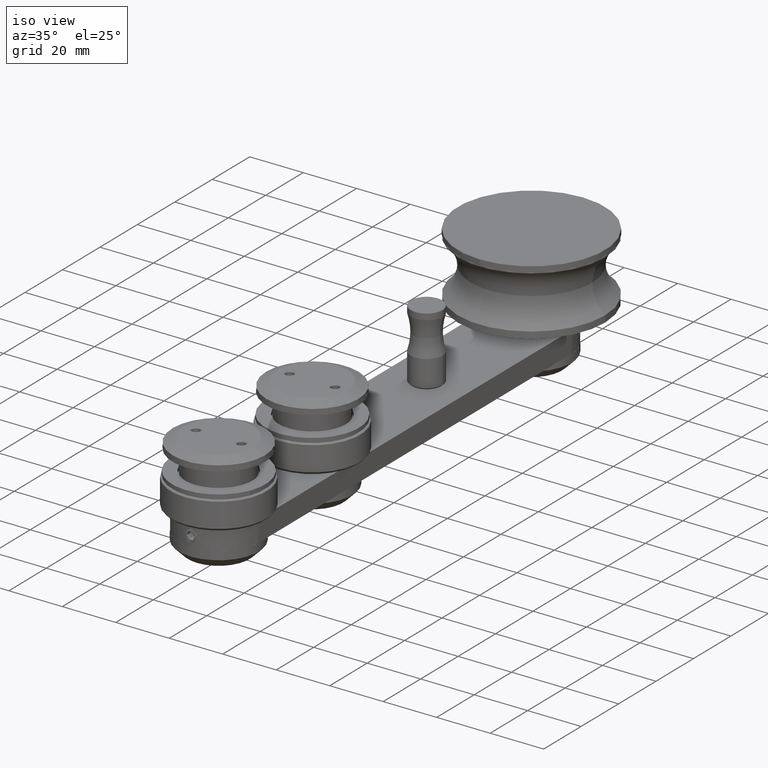
[diagram: clean part render]
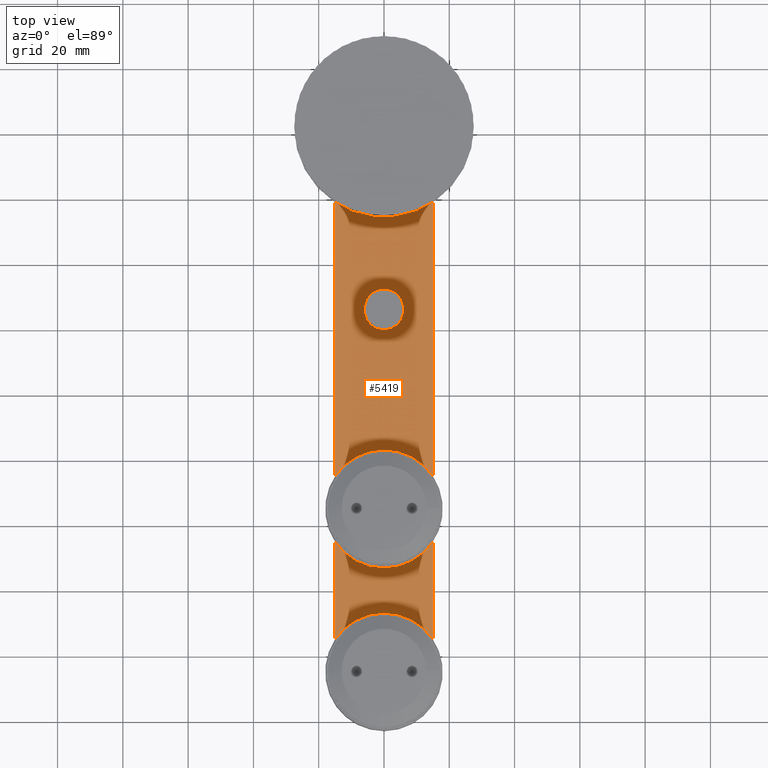
[diagram: tour spotlight — one face highlighted and labeled with its STEP entity id]
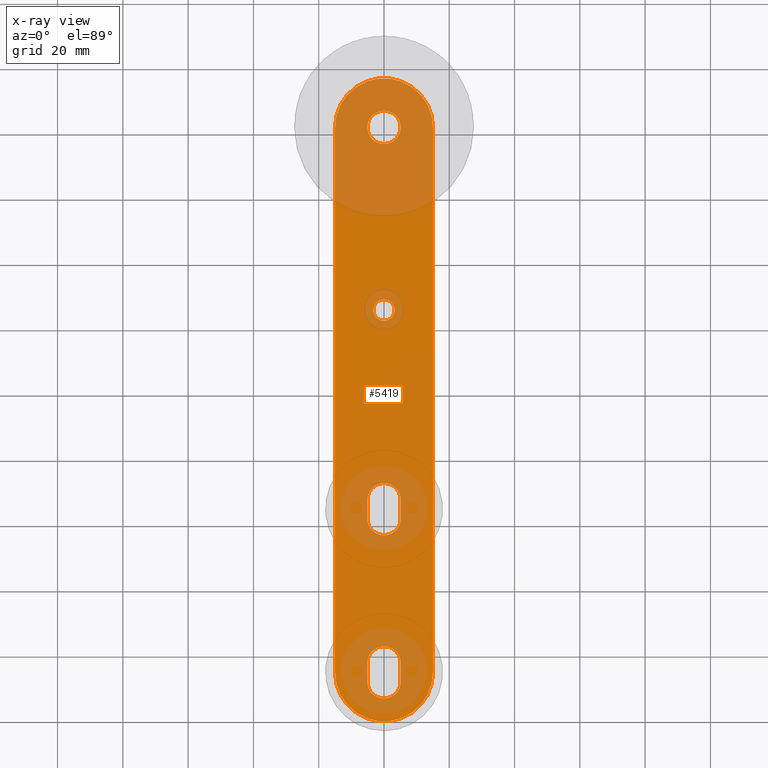
[diagram: x-ray of the same camera — body ghosted, this tour face saturated]
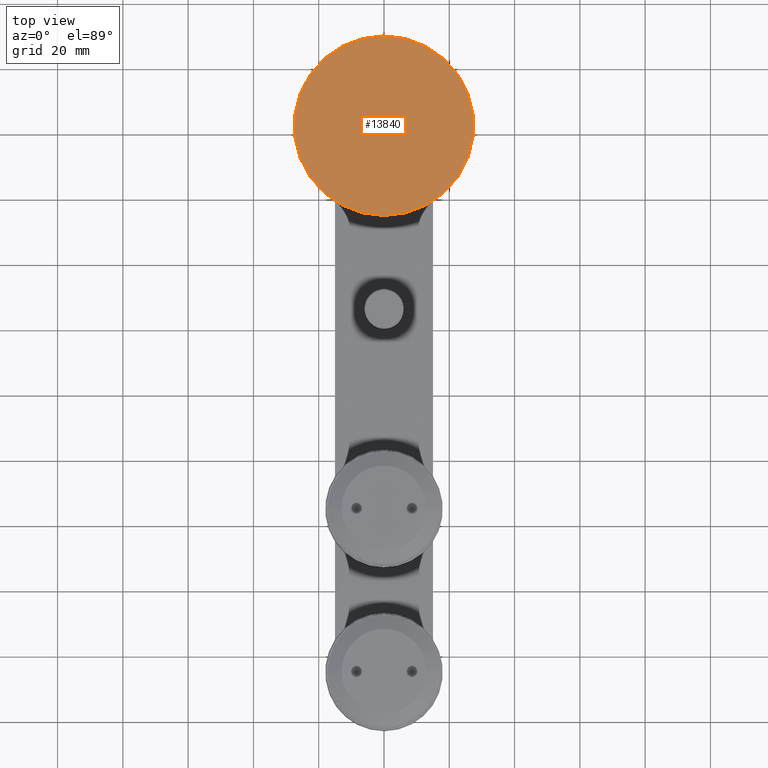
[diagram: tour spotlight — one face highlighted and labeled with its STEP entity id]
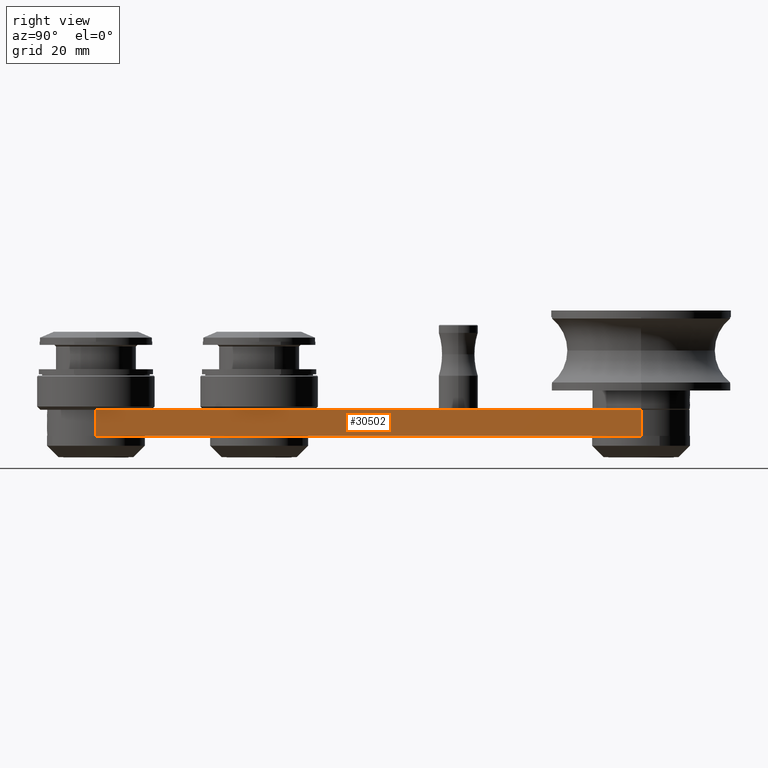
[diagram: tour spotlight — one face highlighted and labeled with its STEP entity id]
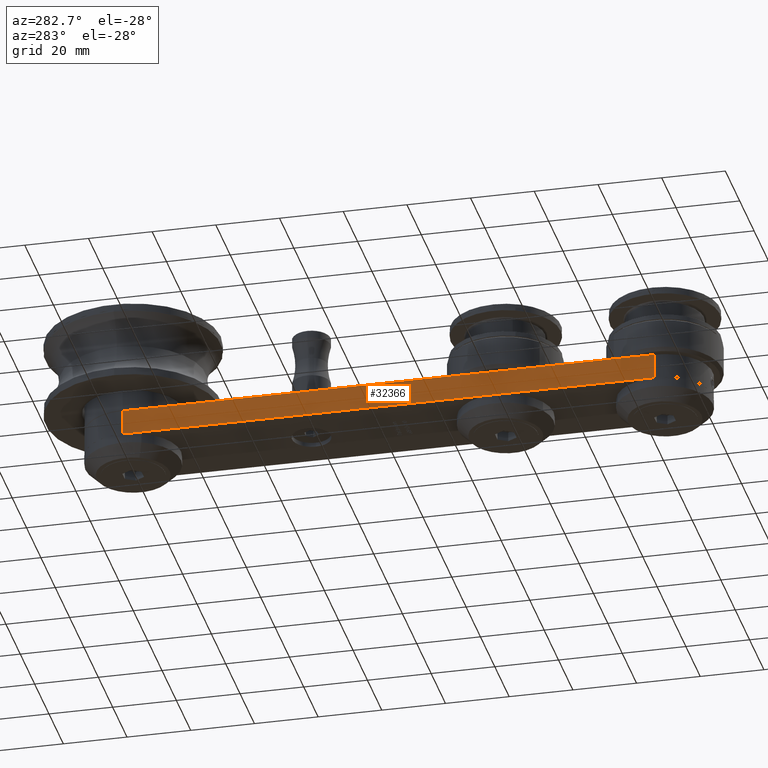
[diagram: tour spotlight — one face highlighted and labeled with its STEP entity id]
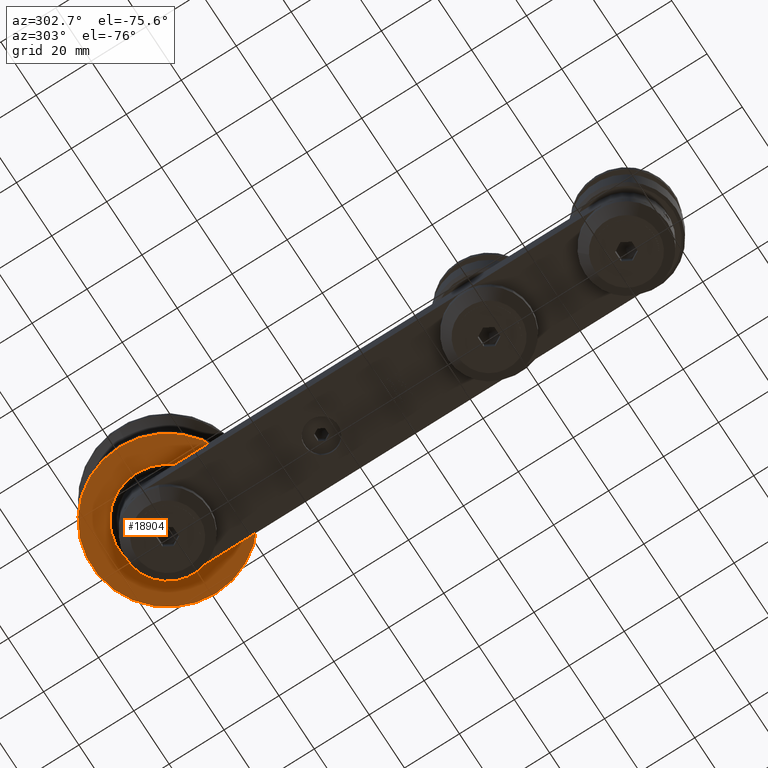
[diagram: tour spotlight — one face highlighted and labeled with its STEP entity id]
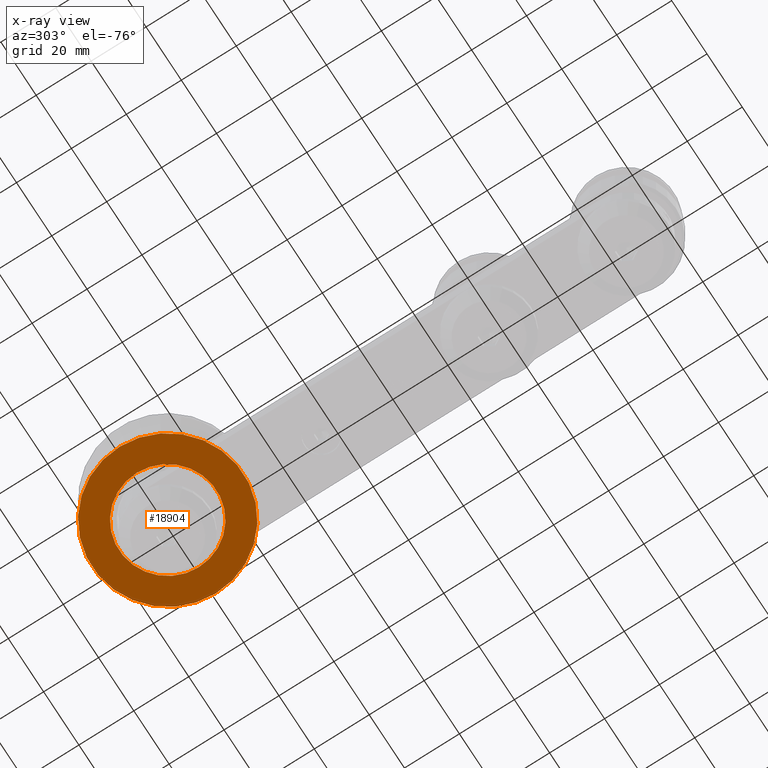
[diagram: x-ray of the same camera — body ghosted, this tour face saturated]
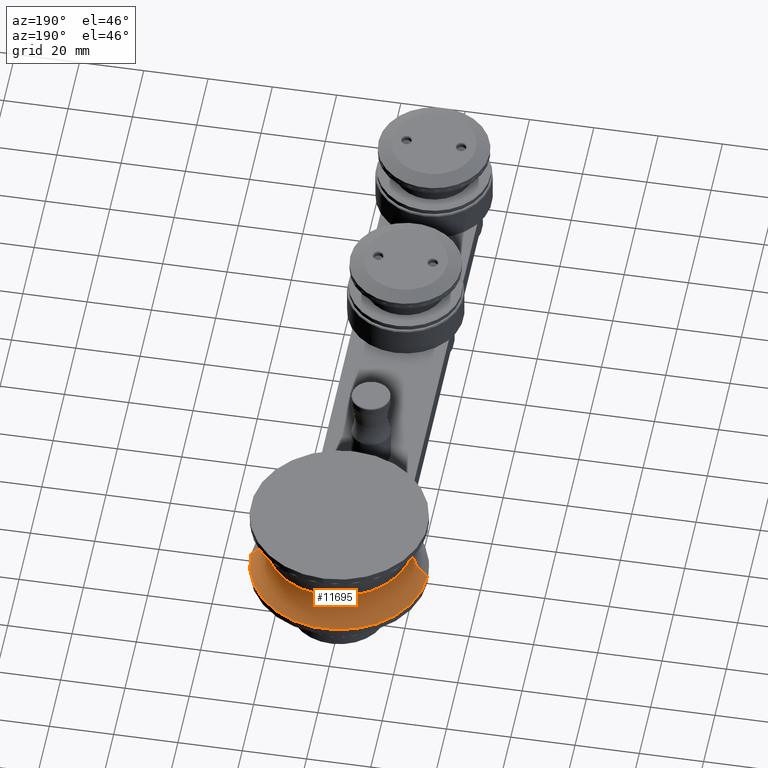
[diagram: tour spotlight — one face highlighted and labeled with its STEP entity id]
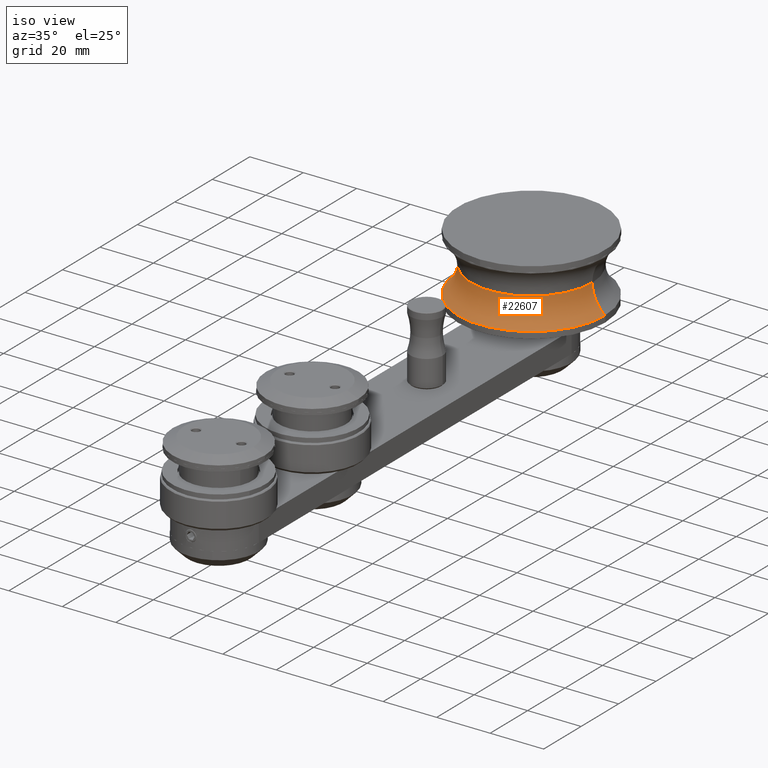
[diagram: tour spotlight — one face highlighted and labeled with its STEP entity id]
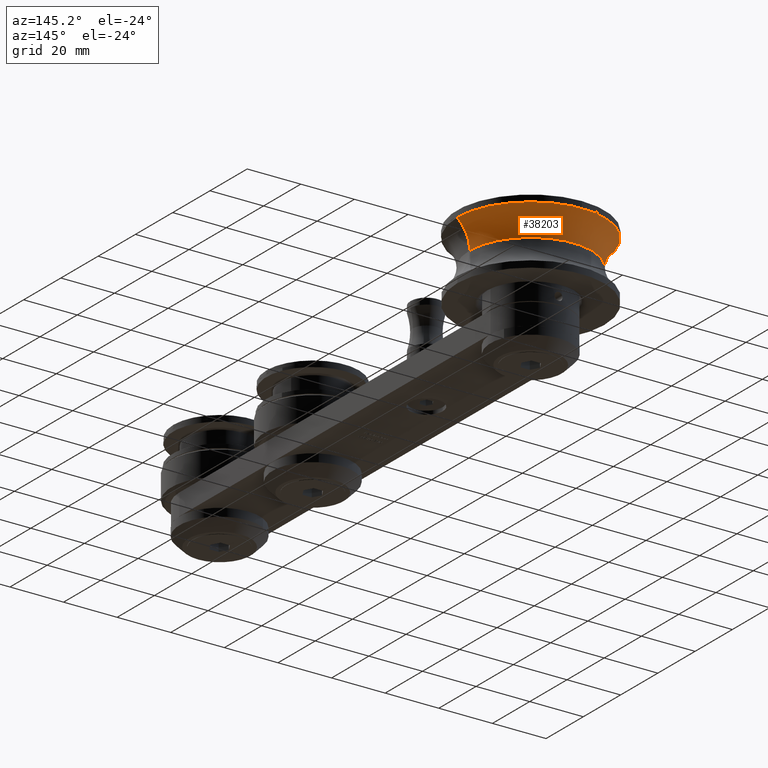
[diagram: tour spotlight — one face highlighted and labeled with its STEP entity id]
A machine part: a face-by-face anatomy tour. The part has 987 B-rep faces; the first image is the clean iso view, then the 8 largest visible faces are spotlighted one at a time (largest first), each with its STEP entity span.

Face 1 — top view, entity #5419. An x-ray twin of the same camera follows (body ghosted, this face saturated) — the face is partly hidden behind the body. In plain terms, the highlighted planar face has unit normal (0, 0, 1).
Definition (entity closure, byte-faithful):
#142 = EDGE_LOOP ( 'NONE', ( #12734, #22646 ) ) ;
#166 = VECTOR ( 'NONE', #3128, 1000.000000000000000 ) ;
#484 = DIRECTION ( 'NONE',  ( 1.000000000000000000, 0.0000000000000000000, 0.0000000000000000000 ) ) ;
#1187 = VERTEX_POINT ( 'NONE', #19536 ) ;
#1382 = CARTESIAN_POINT ( 'NONE',  ( 15.00000000000004100, 15.00000000000001400, 4.000000000000000000 ) ) ;
#1811 = LINE ( 'NONE', #10033, #166 ) ;
#1943 = VECTOR ( 'NONE', #8839, 1000.000000000000000 ) ;
#2210 = VERTEX_POINT ( 'NONE', #34597 ) ;
#2949 = LINE ( 'NONE', #43219, #44552 ) ;
#3128 = DIRECTION ( 'NONE',  ( -1.495451272393799300E-016, 1.000000000000000000, -0.0000000000000000000 ) ) ;
#3132 = EDGE_CURVE ( 'NONE', #32238, #12658, #11281, .T. ) ;
#3175 = PLANE ( 'NONE',  #35978 ) ;
#3995 = CARTESIAN_POINT ( 'NONE',  ( 2.076388647954336800E-014, 67.90000000000000600, 4.000000000000000000 ) ) ;
#4226 = DIRECTION ( 'NONE',  ( 1.000000000000000000, 0.0000000000000000000, 0.0000000000000000000 ) ) ;
#4276 = VERTEX_POINT ( 'NONE', #40925 ) ;
#4315 = VERTEX_POINT ( 'NONE', #38609 ) ;
#4747 = ORIENTED_EDGE ( 'NONE', *, *, #6115, .F. ) ;
#4755 = LINE ( 'NONE', #5962, #8025 ) ;
#5028 = CARTESIAN_POINT ( 'NONE',  ( 5.100000000000019200, 17.89999999999999900, 4.000000000000000000 ) ) ;
#5356 = VERTEX_POINT ( 'NONE', #5028 ) ;
#5419 = ADVANCED_FACE ( 'NONE', ( #21505, #17188, #20996, #16094, #29168 ), #3175, .T. ) ;
#5472 = CARTESIAN_POINT ( 'NONE',  ( -14.99999999999997500, 181.9999999999999700, 4.000000000000000000 ) ) ;
#5617 = DIRECTION ( 'NONE',  ( 0.0000000000000000000, 0.0000000000000000000, 1.000000000000000000 ) ) ;
#5897 = DIRECTION ( 'NONE',  ( 2.990902544787597600E-016, -1.000000000000000000, 0.0000000000000000000 ) ) ;
#5962 = CARTESIAN_POINT ( 'NONE',  ( 5.100000000000019200, 17.89999999999999900, 4.000000000000000000 ) ) ;
#6091 = AXIS2_PLACEMENT_3D ( 'NONE', #35457, #15759, #36545 ) ;
#6115 = EDGE_CURVE ( 'NONE', #18741, #25147, #1811, .T. ) ;
#6340 = CARTESIAN_POINT ( 'NONE',  ( -3.081487911019577400E-030, 182.0000000000000000, 4.000000000000000000 ) ) ;
#6707 = DIRECTION ( 'NONE',  ( 0.0000000000000000000, 0.0000000000000000000, 1.000000000000000000 ) ) ;
#6730 = VERTEX_POINT ( 'NONE', #24529 ) ;
#6809 = CIRCLE ( 'NONE', #33723, 15.00000000000001800 ) ;
#7348 = CARTESIAN_POINT ( 'NONE',  ( -2.482681260612889300E-014, 181.9999999999999700, 4.000000000000000000 ) ) ;
#7663 = LINE ( 'NONE', #27874, #24043 ) ;
#7699 = CARTESIAN_POINT ( 'NONE',  ( -15.00000000000001800, 15.00000000000000900, 4.000000000000000000 ) ) ;
#8025 = VECTOR ( 'NONE', #20022, 1000.000000000000000 ) ;
#8839 = DIRECTION ( 'NONE',  ( -1.246507886929442700E-016, -1.000000000000000000, 0.0000000000000000000 ) ) ;
#9111 = EDGE_LOOP ( 'NONE', ( #26226, #23682, #4747, #40985 ) ) ;
#9456 = VERTEX_POINT ( 'NONE', #30675 ) ;
#9460 = AXIS2_PLACEMENT_3D ( 'NONE', #33741, #5617, #37285 ) ;
#9838 = CARTESIAN_POINT ( 'NONE',  ( 5.100000000000013900, 62.10000000000000100, 4.000000000000000000 ) ) ;
#10033 = CARTESIAN_POINT ( 'NONE',  ( 5.100000000000013000, 67.90000000000000600, 4.000000000000000000 ) ) ;
#10525 = EDGE_CURVE ( 'NONE', #1187, #32238, #18336, .T. ) ;
#11075 = ORIENTED_EDGE ( 'NONE', *, *, #34197, .F. ) ;
#11160 = DIRECTION ( 'NONE',  ( 1.000000000000000000, 0.0000000000000000000, 0.0000000000000000000 ) ) ;
#11281 = LINE ( 'NONE', #5472, #1943 ) ;
#11665 = EDGE_CURVE ( 'NONE', #4276, #6730, #2949, .T. ) ;
#11922 = CARTESIAN_POINT ( 'NONE',  ( -14.99999999999997500, 181.9999999999999700, 4.000000000000000000 ) ) ;
#12115 = CARTESIAN_POINT ( 'NONE',  ( 1.468351512177675600E-014, 62.10000000000000100, 4.000000000000000000 ) ) ;
#12179 = CARTESIAN_POINT ( 'NONE',  ( 0.0000000000000000000, 15.00000000000000700, 4.000000000000000000 ) ) ;
#12333 = ORIENTED_EDGE ( 'NONE', *, *, #28442, .T. ) ;
#12466 = EDGE_LOOP ( 'NONE', ( #14642, #28198, #35573, #12333 ) ) ;
#12658 = VERTEX_POINT ( 'NONE', #7699 ) ;
#12734 = ORIENTED_EDGE ( 'NONE', *, *, #24199, .F. ) ;
#13223 = DIRECTION ( 'NONE',  ( 0.0000000000000000000, 0.0000000000000000000, 1.000000000000000000 ) ) ;
#13476 = CIRCLE ( 'NONE', #31040, 5.099999999999992500 ) ;
#13919 = CARTESIAN_POINT ( 'NONE',  ( 5.100000000000013000, 67.90000000000000600, 4.000000000000000000 ) ) ;
#13921 = EDGE_CURVE ( 'NONE', #6730, #36324, #27453, .T. ) ;
#14206 = ORIENTED_EDGE ( 'NONE', *, *, #14742, .F. ) ;
#14557 = EDGE_CURVE ( 'NONE', #40818, #4315, #35131, .T. ) ;
#14642 = ORIENTED_EDGE ( 'NONE', *, *, #10525, .T. ) ;
#14742 = EDGE_CURVE ( 'NONE', #5356, #4276, #26878, .T. ) ;
#14954 = AXIS2_PLACEMENT_3D ( 'NONE', #7348, #24303, #27655 ) ;
#15190 = EDGE_LOOP ( 'NONE', ( #42342, #11075 ) ) ;
#15759 = DIRECTION ( 'NONE',  ( 0.0000000000000000000, 0.0000000000000000000, 1.000000000000000000 ) ) ;
#16094 = FACE_OUTER_BOUND ( 'NONE', #12466, .T. ) ;
#16407 = CIRCLE ( 'NONE', #29095, 5.099999999999992500 ) ;
#16750 = CIRCLE ( 'NONE', #28647, 3.249999999999997800 ) ;
#17096 = DIRECTION ( 'NONE',  ( 1.000000000000000000, 0.0000000000000000000, -0.0000000000000000000 ) ) ;
#17188 = FACE_BOUND ( 'NONE', #19520, .T. ) ;
#17331 = CIRCLE ( 'NONE', #27476, 5.099999999999996100 ) ;
#18045 = CARTESIAN_POINT ( 'NONE',  ( 5.099999999999996100, 182.0000000000000000, 4.000000000000000000 ) ) ;
#18336 = CIRCLE ( 'NONE', #14954, 15.00000000000000000 ) ;
#18471 = ORIENTED_EDGE ( 'NONE', *, *, #11665, .F. ) ;
#18474 = DIRECTION ( 'NONE',  ( 0.0000000000000000000, 0.0000000000000000000, 1.000000000000000000 ) ) ;
#18612 = CARTESIAN_POINT ( 'NONE',  ( -3.081487911019577400E-030, 182.0000000000000000, 4.000000000000000000 ) ) ;
#18741 = VERTEX_POINT ( 'NONE', #9838 ) ;
#19291 = EDGE_CURVE ( 'NONE', #4315, #18741, #16407, .T. ) ;
#19520 = EDGE_LOOP ( 'NONE', ( #18471, #14206, #44472, #21183 ) ) ;
#19536 = CARTESIAN_POINT ( 'NONE',  ( 15.00000000000002100, 181.9999999999999700, 4.000000000000000000 ) ) ;
#20022 = DIRECTION ( 'NONE',  ( -0.0000000000000000000, 1.000000000000000000, -0.0000000000000000000 ) ) ;
#20108 = DIRECTION ( 'NONE',  ( 0.0000000000000000000, 0.0000000000000000000, 1.000000000000000000 ) ) ;
#20996 = FACE_BOUND ( 'NONE', #9111, .T. ) ;
#21183 = ORIENTED_EDGE ( 'NONE', *, *, #13921, .F. ) ;
#21505 = FACE_BOUND ( 'NONE', #142, .T. ) ;
#21811 = CARTESIAN_POINT ( 'NONE',  ( 2.009645397400806700E-014, 17.89999999999999900, 4.000000000000000000 ) ) ;
#22646 = ORIENTED_EDGE ( 'NONE', *, *, #31000, .F. ) ;
#23245 = EDGE_CURVE ( 'NONE', #36324, #5356, #4755, .T. ) ;
#23478 = AXIS2_PLACEMENT_3D ( 'NONE', #18612, #18474, #4226 ) ;
#23620 = VECTOR ( 'NONE', #40894, 1000.000000000000000 ) ;
#23682 = ORIENTED_EDGE ( 'NONE', *, *, #35213, .F. ) ;
#24043 = VECTOR ( 'NONE', #37710, 1000.000000000000000 ) ;
#24199 = EDGE_CURVE ( 'NONE', #2210, #41909, #16750, .T. ) ;
#24303 = DIRECTION ( 'NONE',  ( 0.0000000000000000000, 0.0000000000000000000, 1.000000000000000000 ) ) ;
#24529 = CARTESIAN_POINT ( 'NONE',  ( -5.099999999999977400, 12.10000000000000000, 4.000000000000000000 ) ) ;
#25091 = CIRCLE ( 'NONE', #6091, 3.249999999999997800 ) ;
#25147 = VERTEX_POINT ( 'NONE', #13919 ) ;
#26138 = DIRECTION ( 'NONE',  ( 0.0000000000000000000, 0.0000000000000000000, 1.000000000000000000 ) ) ;
#26226 = ORIENTED_EDGE ( 'NONE', *, *, #14557, .F. ) ;
#26773 = CARTESIAN_POINT ( 'NONE',  ( -5.099999999999972100, 67.90000000000000600, 4.000000000000000000 ) ) ;
#26878 = CIRCLE ( 'NONE', #32870, 5.099999999999999600 ) ;
#27109 = DIRECTION ( 'NONE',  ( 1.000000000000000000, 0.0000000000000000000, 0.0000000000000000000 ) ) ;
#27453 = CIRCLE ( 'NONE', #9460, 5.099999999999998800 ) ;
#27476 = AXIS2_PLACEMENT_3D ( 'NONE', #6340, #13223, #31068 ) ;
#27655 = DIRECTION ( 'NONE',  ( 1.000000000000000000, 0.0000000000000000000, 0.0000000000000000000 ) ) ;
#27874 = CARTESIAN_POINT ( 'NONE',  ( 15.00000000000002100, 181.9999999999999700, 4.000000000000000000 ) ) ;
#28198 = ORIENTED_EDGE ( 'NONE', *, *, #3132, .T. ) ;
#28442 = EDGE_CURVE ( 'NONE', #43355, #1187, #7663, .T. ) ;
#28647 = AXIS2_PLACEMENT_3D ( 'NONE', #42636, #31930, #11160 ) ;
#29095 = AXIS2_PLACEMENT_3D ( 'NONE', #12115, #26138, #36574 ) ;
#29130 = DIRECTION ( 'NONE',  ( 0.0000000000000000000, 0.0000000000000000000, 1.000000000000000000 ) ) ;
#29168 = FACE_BOUND ( 'NONE', #15190, .T. ) ;
#29501 = CARTESIAN_POINT ( 'NONE',  ( -5.099999999999972100, 67.90000000000000600, 4.000000000000000000 ) ) ;
#30098 = CARTESIAN_POINT ( 'NONE',  ( 3.249999999999997800, 126.0000000000000000, 4.000000000000000000 ) ) ;
#30675 = CARTESIAN_POINT ( 'NONE',  ( -5.099999999999996100, 182.0000000000000000, 4.000000000000000000 ) ) ;
#31000 = EDGE_CURVE ( 'NONE', #41909, #2210, #25091, .T. ) ;
#31040 = AXIS2_PLACEMENT_3D ( 'NONE', #3995, #38869, #484 ) ;
#31068 = DIRECTION ( 'NONE',  ( 1.000000000000000000, 0.0000000000000000000, 0.0000000000000000000 ) ) ;
#31930 = DIRECTION ( 'NONE',  ( 0.0000000000000000000, 0.0000000000000000000, 1.000000000000000000 ) ) ;
#32167 = VERTEX_POINT ( 'NONE', #18045 ) ;
#32238 = VERTEX_POINT ( 'NONE', #11922 ) ;
#32870 = AXIS2_PLACEMENT_3D ( 'NONE', #21811, #29130, #42793 ) ;
#33723 = AXIS2_PLACEMENT_3D ( 'NONE', #12179, #20108, #27109 ) ;
#33741 = CARTESIAN_POINT ( 'NONE',  ( 2.080674911751352900E-014, 12.10000000000000000, 4.000000000000000000 ) ) ;
#34197 = EDGE_CURVE ( 'NONE', #32167, #9456, #17331, .T. ) ;
#34597 = CARTESIAN_POINT ( 'NONE',  ( -3.249999999999997800, 126.0000000000000000, 4.000000000000000000 ) ) ;
#35131 = LINE ( 'NONE', #26773, #23620 ) ;
#35213 = EDGE_CURVE ( 'NONE', #25147, #40818, #13476, .T. ) ;
#35457 = CARTESIAN_POINT ( 'NONE',  ( 2.014925206034263600E-030, 126.0000000000000000, 4.000000000000000000 ) ) ;
#35573 = ORIENTED_EDGE ( 'NONE', *, *, #37439, .T. ) ;
#35978 = AXIS2_PLACEMENT_3D ( 'NONE', #44768, #6707, #17096 ) ;
#36324 = VERTEX_POINT ( 'NONE', #43172 ) ;
#36545 = DIRECTION ( 'NONE',  ( 1.000000000000000000, 0.0000000000000000000, 0.0000000000000000000 ) ) ;
#36574 = DIRECTION ( 'NONE',  ( 1.000000000000000000, 0.0000000000000000000, 0.0000000000000000000 ) ) ;
#37285 = DIRECTION ( 'NONE',  ( 1.000000000000000000, 0.0000000000000000000, 0.0000000000000000000 ) ) ;
#37439 = EDGE_CURVE ( 'NONE', #12658, #43355, #6809, .T. ) ;
#37710 = DIRECTION ( 'NONE',  ( -1.142632229685322400E-016, 1.000000000000000000, -0.0000000000000000000 ) ) ;
#38609 = CARTESIAN_POINT ( 'NONE',  ( -5.099999999999977400, 62.10000000000000100, 4.000000000000000000 ) ) ;
#38869 = DIRECTION ( 'NONE',  ( 0.0000000000000000000, 0.0000000000000000000, 1.000000000000000000 ) ) ;
#39415 = EDGE_CURVE ( 'NONE', #9456, #32167, #43942, .T. ) ;
#40818 = VERTEX_POINT ( 'NONE', #29501 ) ;
#40894 = DIRECTION ( 'NONE',  ( 1.495451272393799300E-016, -1.000000000000000000, 0.0000000000000000000 ) ) ;
#40925 = CARTESIAN_POINT ( 'NONE',  ( -5.099999999999979200, 17.89999999999999900, 4.000000000000000000 ) ) ;
#40985 = ORIENTED_EDGE ( 'NONE', *, *, #19291, .F. ) ;
#41909 = VERTEX_POINT ( 'NONE', #30098 ) ;
#42342 = ORIENTED_EDGE ( 'NONE', *, *, #39415, .F. ) ;
#42636 = CARTESIAN_POINT ( 'NONE',  ( 2.014925206034263600E-030, 126.0000000000000000, 4.000000000000000000 ) ) ;
#42793 = DIRECTION ( 'NONE',  ( 1.000000000000000000, 0.0000000000000000000, 0.0000000000000000000 ) ) ;
#43172 = CARTESIAN_POINT ( 'NONE',  ( 5.100000000000019200, 12.10000000000000000, 4.000000000000000000 ) ) ;
#43219 = CARTESIAN_POINT ( 'NONE',  ( -5.099999999999979200, 17.89999999999999900, 4.000000000000000000 ) ) ;
#43355 = VERTEX_POINT ( 'NONE', #1382 ) ;
#43942 = CIRCLE ( 'NONE', #23478, 5.099999999999996100 ) ;
#44472 = ORIENTED_EDGE ( 'NONE', *, *, #23245, .F. ) ;
#44552 = VECTOR ( 'NONE', #5897, 1000.000000000000000 ) ;
#44768 = CARTESIAN_POINT ( 'NONE',  ( -2.482681260612889300E-014, 181.9999999999999700, 4.000000000000000000 ) ) ;

Face 2 — top view, entity #13840. In plain terms, the highlighted planar face has unit normal (0, 0, 1).
Definition (entity closure, byte-faithful):
#487 = AXIS2_PLACEMENT_3D ( 'NONE', #44620, #6411, #37739 ) ;
#2084 = DIRECTION ( 'NONE',  ( 0.0000000000000000000, -1.000000000000000000, 4.866999562630479900E-017 ) ) ;
#3367 = EDGE_CURVE ( 'NONE', #21609, #6680, #9030, .T. ) ;
#4562 = CARTESIAN_POINT ( 'NONE',  ( 0.0000000000000000000, 2.287041808959842600E-031, 21.00000000000000400 ) ) ;
#6411 = DIRECTION ( 'NONE',  ( -0.0000000000000000000, -4.866999562630479900E-017, -1.000000000000000000 ) ) ;
#6680 = VERTEX_POINT ( 'NONE', #26665 ) ;
#7390 = EDGE_LOOP ( 'NONE', ( #40417, #32316 ) ) ;
#9030 = CIRCLE ( 'NONE', #487, 27.50000000000000000 ) ;
#9836 = CARTESIAN_POINT ( 'NONE',  ( 3.367778697655221300E-015, -27.50000000000000000, 21.00000000000000400 ) ) ;
#10736 = EDGE_CURVE ( 'NONE', #6680, #21609, #29197, .T. ) ;
#11472 = DIRECTION ( 'NONE',  ( -0.0000000000000000000, -4.866999562630479900E-017, -1.000000000000000000 ) ) ;
#12509 = CARTESIAN_POINT ( 'NONE',  ( 0.0000000000000000000, 27.50000000000000000, 21.00000000000000400 ) ) ;
#13840 = ADVANCED_FACE ( 'NONE', ( #27982 ), #33423, .T. ) ;
#16476 = DIRECTION ( 'NONE',  ( 0.0000000000000000000, 4.866999562630479900E-017, 1.000000000000000000 ) ) ;
#21609 = VERTEX_POINT ( 'NONE', #9836 ) ;
#26665 = CARTESIAN_POINT ( 'NONE',  ( 0.0000000000000000000, 27.50000000000000000, 21.00000000000000400 ) ) ;
#27982 = FACE_OUTER_BOUND ( 'NONE', #7390, .T. ) ;
#28845 = DIRECTION ( 'NONE',  ( 0.0000000000000000000, 1.000000000000000000, 0.0000000000000000000 ) ) ;
#29197 = CIRCLE ( 'NONE', #42227, 27.50000000000000000 ) ;
#32316 = ORIENTED_EDGE ( 'NONE', *, *, #3367, .F. ) ;
#33423 = PLANE ( 'NONE',  #34643 ) ;
#34643 = AXIS2_PLACEMENT_3D ( 'NONE', #12509, #16476, #2084 ) ;
#37739 = DIRECTION ( 'NONE',  ( 0.0000000000000000000, 1.000000000000000000, 0.0000000000000000000 ) ) ;
#40417 = ORIENTED_EDGE ( 'NONE', *, *, #10736, .F. ) ;
#42227 = AXIS2_PLACEMENT_3D ( 'NONE', #4562, #11472, #28845 ) ;
#44620 = CARTESIAN_POINT ( 'NONE',  ( 0.0000000000000000000, 2.287041808959842600E-031, 21.00000000000000400 ) ) ;

Face 3 — right view, entity #30502. In plain terms, the highlighted planar face has unit normal (-1, -0, 0).
Definition (entity closure, byte-faithful):
#1187 = VERTEX_POINT ( 'NONE', #19536 ) ;
#1382 = CARTESIAN_POINT ( 'NONE',  ( 15.00000000000004100, 15.00000000000001400, 4.000000000000000000 ) ) ;
#2999 = ORIENTED_EDGE ( 'NONE', *, *, #40231, .T. ) ;
#4015 = CARTESIAN_POINT ( 'NONE',  ( 15.00000000000002100, 181.9999999999999700, 4.000000000000000000 ) ) ;
#5707 = CARTESIAN_POINT ( 'NONE',  ( 15.00000000000004100, 15.00000000000001400, 4.000000000000000000 ) ) ;
#7246 = DIRECTION ( 'NONE',  ( 1.142632229685322400E-016, -1.000000000000000000, 0.0000000000000000000 ) ) ;
#7663 = LINE ( 'NONE', #27874, #24043 ) ;
#11044 = ORIENTED_EDGE ( 'NONE', *, *, #28442, .F. ) ;
#11364 = VECTOR ( 'NONE', #37362, 1000.000000000000000 ) ;
#12453 = DIRECTION ( 'NONE',  ( -1.142632229685322400E-016, 1.000000000000000000, -0.0000000000000000000 ) ) ;
#12716 = LINE ( 'NONE', #33829, #17107 ) ;
#15038 = EDGE_CURVE ( 'NONE', #1187, #29119, #44423, .T. ) ;
#17107 = VECTOR ( 'NONE', #12453, 1000.000000000000000 ) ;
#18090 = PLANE ( 'NONE',  #38908 ) ;
#18124 = CARTESIAN_POINT ( 'NONE',  ( 15.00000000000004100, 15.00000000000001400, -4.000000000000000000 ) ) ;
#18408 = DIRECTION ( 'NONE',  ( -1.000000000000000000, -1.142632229685322400E-016, 0.0000000000000000000 ) ) ;
#19254 = VECTOR ( 'NONE', #19838, 1000.000000000000000 ) ;
#19536 = CARTESIAN_POINT ( 'NONE',  ( 15.00000000000002100, 181.9999999999999700, 4.000000000000000000 ) ) ;
#19838 = DIRECTION ( 'NONE',  ( -0.0000000000000000000, -0.0000000000000000000, -1.000000000000000000 ) ) ;
#21174 = LINE ( 'NONE', #5707, #11364 ) ;
#23186 = ORIENTED_EDGE ( 'NONE', *, *, #15038, .F. ) ;
#24043 = VECTOR ( 'NONE', #37710, 1000.000000000000000 ) ;
#25015 = CARTESIAN_POINT ( 'NONE',  ( 15.00000000000002100, 181.9999999999999700, -4.000000000000000000 ) ) ;
#27011 = ORIENTED_EDGE ( 'NONE', *, *, #33938, .T. ) ;
#27874 = CARTESIAN_POINT ( 'NONE',  ( 15.00000000000002100, 181.9999999999999700, 4.000000000000000000 ) ) ;
#28442 = EDGE_CURVE ( 'NONE', #43355, #1187, #7663, .T. ) ;
#28518 = VERTEX_POINT ( 'NONE', #18124 ) ;
#29119 = VERTEX_POINT ( 'NONE', #25015 ) ;
#30502 = ADVANCED_FACE ( 'NONE', ( #40485 ), #18090, .F. ) ;
#30507 = CARTESIAN_POINT ( 'NONE',  ( 15.00000000000002100, 181.9999999999999700, 4.000000000000000000 ) ) ;
#33829 = CARTESIAN_POINT ( 'NONE',  ( 15.00000000000002100, 181.9999999999999700, -4.000000000000000000 ) ) ;
#33938 = EDGE_CURVE ( 'NONE', #43355, #28518, #21174, .T. ) ;
#37362 = DIRECTION ( 'NONE',  ( -0.0000000000000000000, -0.0000000000000000000, -1.000000000000000000 ) ) ;
#37474 = EDGE_LOOP ( 'NONE', ( #2999, #23186, #11044, #27011 ) ) ;
#37710 = DIRECTION ( 'NONE',  ( -1.142632229685322400E-016, 1.000000000000000000, -0.0000000000000000000 ) ) ;
#38908 = AXIS2_PLACEMENT_3D ( 'NONE', #4015, #18408, #7246 ) ;
#40231 = EDGE_CURVE ( 'NONE', #28518, #29119, #12716, .T. ) ;
#40485 = FACE_OUTER_BOUND ( 'NONE', #37474, .T. ) ;
#43355 = VERTEX_POINT ( 'NONE', #1382 ) ;
#44423 = LINE ( 'NONE', #30507, #19254 ) ;

Face 4 — auxiliary view, entity #32366. In plain terms, the highlighted planar face has unit normal (1, -0, 0).
Definition (entity closure, byte-faithful):
#51 = DIRECTION ( 'NONE',  ( -0.0000000000000000000, -0.0000000000000000000, -1.000000000000000000 ) ) ;
#249 = LINE ( 'NONE', #34945, #40193 ) ;
#718 = LINE ( 'NONE', #17664, #43939 ) ;
#1943 = VECTOR ( 'NONE', #8839, 1000.000000000000000 ) ;
#3132 = EDGE_CURVE ( 'NONE', #32238, #12658, #11281, .T. ) ;
#4351 = EDGE_CURVE ( 'NONE', #40639, #20182, #249, .T. ) ;
#5472 = CARTESIAN_POINT ( 'NONE',  ( -14.99999999999997500, 181.9999999999999700, 4.000000000000000000 ) ) ;
#6266 = EDGE_CURVE ( 'NONE', #12658, #20182, #718, .T. ) ;
#7073 = ORIENTED_EDGE ( 'NONE', *, *, #3132, .F. ) ;
#7699 = CARTESIAN_POINT ( 'NONE',  ( -15.00000000000001800, 15.00000000000000900, 4.000000000000000000 ) ) ;
#8839 = DIRECTION ( 'NONE',  ( -1.246507886929442700E-016, -1.000000000000000000, 0.0000000000000000000 ) ) ;
#9642 = AXIS2_PLACEMENT_3D ( 'NONE', #22442, #9851, #30151 ) ;
#9851 = DIRECTION ( 'NONE',  ( 1.000000000000000000, -1.246507886929442700E-016, 0.0000000000000000000 ) ) ;
#11281 = LINE ( 'NONE', #5472, #1943 ) ;
#11922 = CARTESIAN_POINT ( 'NONE',  ( -14.99999999999997500, 181.9999999999999700, 4.000000000000000000 ) ) ;
#12098 = CARTESIAN_POINT ( 'NONE',  ( -14.99999999999997500, 181.9999999999999700, -4.000000000000000000 ) ) ;
#12658 = VERTEX_POINT ( 'NONE', #7699 ) ;
#17343 = CARTESIAN_POINT ( 'NONE',  ( -14.99999999999997500, 181.9999999999999700, 4.000000000000000000 ) ) ;
#17664 = CARTESIAN_POINT ( 'NONE',  ( -15.00000000000001800, 15.00000000000000900, 4.000000000000000000 ) ) ;
#17807 = EDGE_LOOP ( 'NONE', ( #44788, #36926, #7073, #17932 ) ) ;
#17932 = ORIENTED_EDGE ( 'NONE', *, *, #26322, .T. ) ;
#20182 = VERTEX_POINT ( 'NONE', #30615 ) ;
#22442 = CARTESIAN_POINT ( 'NONE',  ( -14.99999999999997500, 181.9999999999999700, 4.000000000000000000 ) ) ;
#24072 = DIRECTION ( 'NONE',  ( -1.246507886929442700E-016, -1.000000000000000000, 0.0000000000000000000 ) ) ;
#25051 = FACE_OUTER_BOUND ( 'NONE', #17807, .T. ) ;
#26322 = EDGE_CURVE ( 'NONE', #32238, #40639, #36715, .T. ) ;
#28465 = VECTOR ( 'NONE', #51, 1000.000000000000000 ) ;
#30151 = DIRECTION ( 'NONE',  ( 1.246507886929442700E-016, 1.000000000000000000, 0.0000000000000000000 ) ) ;
#30615 = CARTESIAN_POINT ( 'NONE',  ( -15.00000000000001800, 15.00000000000000900, -4.000000000000000000 ) ) ;
#32238 = VERTEX_POINT ( 'NONE', #11922 ) ;
#32366 = ADVANCED_FACE ( 'NONE', ( #25051 ), #36212, .F. ) ;
#34945 = CARTESIAN_POINT ( 'NONE',  ( -14.99999999999997500, 181.9999999999999700, -4.000000000000000000 ) ) ;
#36212 = PLANE ( 'NONE',  #9642 ) ;
#36715 = LINE ( 'NONE', #17343, #28465 ) ;
#36926 = ORIENTED_EDGE ( 'NONE', *, *, #6266, .F. ) ;
#38757 = DIRECTION ( 'NONE',  ( -0.0000000000000000000, -0.0000000000000000000, -1.000000000000000000 ) ) ;
#40193 = VECTOR ( 'NONE', #24072, 1000.000000000000000 ) ;
#40639 = VERTEX_POINT ( 'NONE', #12098 ) ;
#43939 = VECTOR ( 'NONE', #38757, 1000.000000000000000 ) ;
#44788 = ORIENTED_EDGE ( 'NONE', *, *, #4351, .T. ) ;

Face 5 — auxiliary view, entity #18904. An x-ray twin of the same camera follows (body ghosted, this face saturated) — the face is partly hidden behind the body. In plain terms, the highlighted planar face has unit normal (0, 0, -1).
Definition (entity closure, byte-faithful):
#844 = AXIS2_PLACEMENT_3D ( 'NONE', #30589, #9689, #34091 ) ;
#2823 = DIRECTION ( 'NONE',  ( -1.000000000000000000, 0.0000000000000000000, 0.0000000000000000000 ) ) ;
#3274 = DIRECTION ( 'NONE',  ( 0.0000000000000000000, 0.0000000000000000000, -1.000000000000000000 ) ) ;
#3632 = DIRECTION ( 'NONE',  ( 0.0000000000000000000, 0.0000000000000000000, -1.000000000000000000 ) ) ;
#4103 = CARTESIAN_POINT ( 'NONE',  ( 0.0000000000000000000, 17.70000000000002100, 0.0000000000000000000 ) ) ;
#4281 = EDGE_CURVE ( 'NONE', #42651, #38096, #37989, .T. ) ;
#5268 = ORIENTED_EDGE ( 'NONE', *, *, #31711, .F. ) ;
#6861 = AXIS2_PLACEMENT_3D ( 'NONE', #35128, #3632, #28052 ) ;
#7064 = CIRCLE ( 'NONE', #44185, 17.70000000000006700 ) ;
#8656 = ORIENTED_EDGE ( 'NONE', *, *, #34138, .T. ) ;
#9689 = DIRECTION ( 'NONE',  ( 0.0000000000000000000, 0.0000000000000000000, -1.000000000000000000 ) ) ;
#10406 = FACE_OUTER_BOUND ( 'NONE', #37805, .T. ) ;
#12051 = VERTEX_POINT ( 'NONE', #39950 ) ;
#12593 = FACE_BOUND ( 'NONE', #44099, .T. ) ;
#13562 = CIRCLE ( 'NONE', #844, 27.50000000000007500 ) ;
#15456 = EDGE_CURVE ( 'NONE', #12051, #41355, #30671, .T. ) ;
#16899 = AXIS2_PLACEMENT_3D ( 'NONE', #41227, #23774, #2823 ) ;
#18904 = ADVANCED_FACE ( 'NONE', ( #10406, #12593 ), #35299, .T. ) ;
#19775 = AXIS2_PLACEMENT_3D ( 'NONE', #4103, #21082, #38978 ) ;
#21082 = DIRECTION ( 'NONE',  ( 0.0000000000000000000, 0.0000000000000000000, -1.000000000000000000 ) ) ;
#23774 = DIRECTION ( 'NONE',  ( 0.0000000000000000000, 0.0000000000000000000, -1.000000000000000000 ) ) ;
#27708 = DIRECTION ( 'NONE',  ( -1.000000000000000000, 0.0000000000000000000, 0.0000000000000000000 ) ) ;
#28052 = DIRECTION ( 'NONE',  ( -1.000000000000000000, 0.0000000000000000000, 0.0000000000000000000 ) ) ;
#30589 = CARTESIAN_POINT ( 'NONE',  ( 0.0000000000000000000, 0.0000000000000000000, 0.0000000000000000000 ) ) ;
#30671 = CIRCLE ( 'NONE', #6861, 17.70000000000006700 ) ;
#31213 = ORIENTED_EDGE ( 'NONE', *, *, #4281, .T. ) ;
#31711 = EDGE_CURVE ( 'NONE', #41355, #12051, #7064, .T. ) ;
#33536 = CARTESIAN_POINT ( 'NONE',  ( -17.70000000000005600, 0.0000000000000000000, 0.0000000000000000000 ) ) ;
#34091 = DIRECTION ( 'NONE',  ( -1.000000000000000000, 0.0000000000000000000, 0.0000000000000000000 ) ) ;
#34138 = EDGE_CURVE ( 'NONE', #38096, #42651, #13562, .T. ) ;
#34624 = CARTESIAN_POINT ( 'NONE',  ( 0.0000000000000000000, 0.0000000000000000000, 0.0000000000000000000 ) ) ;
#35128 = CARTESIAN_POINT ( 'NONE',  ( 0.0000000000000000000, 0.0000000000000000000, 0.0000000000000000000 ) ) ;
#35299 = PLANE ( 'NONE',  #19775 ) ;
#37805 = EDGE_LOOP ( 'NONE', ( #8656, #31213 ) ) ;
#37989 = CIRCLE ( 'NONE', #16899, 27.50000000000007500 ) ;
#38096 = VERTEX_POINT ( 'NONE', #44668 ) ;
#38978 = DIRECTION ( 'NONE',  ( -1.000000000000000000, 0.0000000000000000000, 0.0000000000000000000 ) ) ;
#39950 = CARTESIAN_POINT ( 'NONE',  ( 17.70000000000005600, 2.167624834490822100E-015, -3.252606517456513300E-015 ) ) ;
#41227 = CARTESIAN_POINT ( 'NONE',  ( 0.0000000000000000000, 0.0000000000000000000, 0.0000000000000000000 ) ) ;
#41355 = VERTEX_POINT ( 'NONE', #33536 ) ;
#42651 = VERTEX_POINT ( 'NONE', #45242 ) ;
#43962 = ORIENTED_EDGE ( 'NONE', *, *, #15456, .F. ) ;
#44099 = EDGE_LOOP ( 'NONE', ( #5268, #43962 ) ) ;
#44185 = AXIS2_PLACEMENT_3D ( 'NONE', #34624, #3274, #27708 ) ;
#44668 = CARTESIAN_POINT ( 'NONE',  ( -27.50000000000007500, 0.0000000000000000000, 0.0000000000000000000 ) ) ;
#45242 = CARTESIAN_POINT ( 'NONE',  ( 27.50000000000000000, 3.367778697655221300E-015, 0.0000000000000000000 ) ) ;

Face 6 — auxiliary view, entity #11695. In plain terms, the highlighted toroidal blend (fillet) surface has major radius 35.25 mm and minor (blend) radius 12.5 mm.
Definition (entity closure, byte-faithful):
#1246 = EDGE_CURVE ( 'NONE', #42984, #15963, #28246, .T. ) ;
#3244 = VERTEX_POINT ( 'NONE', #32703 ) ;
#5563 = DIRECTION ( 'NONE',  ( -0.0000000000000000000, 0.0000000000000000000, 1.000000000000000000 ) ) ;
#7271 = CARTESIAN_POINT ( 'NONE',  ( 27.50000000000070000, 1.192622389734054900E-017, -9.807522622966525100 ) ) ;
#7423 = DIRECTION ( 'NONE',  ( -1.000000000000000000, 1.220309990457412200E-016, 0.0000000000000000000 ) ) ;
#9930 = EDGE_CURVE ( 'NONE', #3244, #32448, #22117, .T. ) ;
#11695 = ADVANCED_FACE ( 'NONE', ( #34106 ), #34690, .F. ) ;
#12437 = ORIENTED_EDGE ( 'NONE', *, *, #9930, .F. ) ;
#13217 = EDGE_LOOP ( 'NONE', ( #23414, #35405, #34708, #12437 ) ) ;
#13395 = CIRCLE ( 'NONE', #23875, 27.50000000000070000 ) ;
#15963 = VERTEX_POINT ( 'NONE', #7271 ) ;
#16565 = DIRECTION ( 'NONE',  ( 1.000000000000000000, 0.0000000000000000000, 0.0000000000000000000 ) ) ;
#17851 = CARTESIAN_POINT ( 'NONE',  ( 35.25000000000090200, 1.528725063204561300E-017, 0.0000000000000000000 ) ) ;
#17974 = CARTESIAN_POINT ( 'NONE',  ( -35.25000000000090200, 4.301592716362485100E-015, 0.0000000000000000000 ) ) ;
#21190 = DIRECTION ( 'NONE',  ( 4.336808689941907000E-019, -1.000000000000000000, 0.0000000000000000000 ) ) ;
#22117 = CIRCLE ( 'NONE', #28965, 12.49999999999999600 ) ;
#23414 = ORIENTED_EDGE ( 'NONE', *, *, #33003, .F. ) ;
#23679 = AXIS2_PLACEMENT_3D ( 'NONE', #44092, #5563, #16565 ) ;
#23875 = AXIS2_PLACEMENT_3D ( 'NONE', #44537, #44688, #34133 ) ;
#27834 = AXIS2_PLACEMENT_3D ( 'NONE', #41065, #30627, #34013 ) ;
#28246 = CIRCLE ( 'NONE', #41004, 12.49999999999999600 ) ;
#28614 = DIRECTION ( 'NONE',  ( 1.220309990457411400E-016, 1.000000000000000000, 0.0000000000000000000 ) ) ;
#28965 = AXIS2_PLACEMENT_3D ( 'NONE', #17974, #28614, #7423 ) ;
#30627 = DIRECTION ( 'NONE',  ( -0.0000000000000000000, 0.0000000000000000000, 1.000000000000000000 ) ) ;
#32448 = VERTEX_POINT ( 'NONE', #41206 ) ;
#32703 = CARTESIAN_POINT ( 'NONE',  ( -22.75000000000090600, 2.776205228290705900E-015, -1.530808498934171800E-015 ) ) ;
#33003 = EDGE_CURVE ( 'NONE', #42984, #3244, #44207, .T. ) ;
#34013 = DIRECTION ( 'NONE',  ( 1.000000000000000000, 4.336808689941907000E-019, 0.0000000000000000000 ) ) ;
#34106 = FACE_OUTER_BOUND ( 'NONE', #13217, .T. ) ;
#34133 = DIRECTION ( 'NONE',  ( 1.000000000000000000, 4.336808689941907500E-019, 0.0000000000000000000 ) ) ;
#34690 = TOROIDAL_SURFACE ( 'NONE', #27834, 35.25000000000000000, 12.50000000000000000 ) ;
#34708 = ORIENTED_EDGE ( 'NONE', *, *, #44044, .T. ) ;
#35261 = DIRECTION ( 'NONE',  ( 1.000000000000000000, 4.336808689941907500E-019, 0.0000000000000000000 ) ) ;
#35405 = ORIENTED_EDGE ( 'NONE', *, *, #1246, .T. ) ;
#39967 = CARTESIAN_POINT ( 'NONE',  ( 22.75000000000090600, 9.866239769618124200E-018, -1.530808498934171800E-015 ) ) ;
#41004 = AXIS2_PLACEMENT_3D ( 'NONE', #17851, #21190, #35261 ) ;
#41065 = CARTESIAN_POINT ( 'NONE',  ( 0.0000000000000000000, 0.0000000000000000000, 0.0000000000000000000 ) ) ;
#41206 = CARTESIAN_POINT ( 'NONE',  ( -27.50000000000000000, 3.355852473757881500E-015, -9.807522622966525100 ) ) ;
#42984 = VERTEX_POINT ( 'NONE', #39967 ) ;
#44044 = EDGE_CURVE ( 'NONE', #15963, #32448, #13395, .T. ) ;
#44092 = CARTESIAN_POINT ( 'NONE',  ( 0.0000000000000000000, 0.0000000000000000000, -1.530808498934191500E-015 ) ) ;
#44207 = CIRCLE ( 'NONE', #23679, 22.75000000000000400 ) ;
#44537 = CARTESIAN_POINT ( 'NONE',  ( 0.0000000000000000000, 0.0000000000000000000, -9.807522622966525100 ) ) ;
#44688 = DIRECTION ( 'NONE',  ( -0.0000000000000000000, 0.0000000000000000000, 1.000000000000000000 ) ) ;

Face 7 — iso view, entity #22607. In plain terms, the highlighted toroidal blend (fillet) surface has major radius 35.25 mm and minor (blend) radius 12.5 mm.
Definition (entity closure, byte-faithful):
#1246 = EDGE_CURVE ( 'NONE', #42984, #15963, #28246, .T. ) ;
#2319 = DIRECTION ( 'NONE',  ( -0.0000000000000000000, 0.0000000000000000000, 1.000000000000000000 ) ) ;
#2636 = DIRECTION ( 'NONE',  ( 1.000000000000000000, 4.336808689941907000E-019, 0.0000000000000000000 ) ) ;
#3244 = VERTEX_POINT ( 'NONE', #32703 ) ;
#3291 = AXIS2_PLACEMENT_3D ( 'NONE', #6529, #45048, #31262 ) ;
#6529 = CARTESIAN_POINT ( 'NONE',  ( 0.0000000000000000000, 0.0000000000000000000, -1.530808498934191500E-015 ) ) ;
#7271 = CARTESIAN_POINT ( 'NONE',  ( 27.50000000000070000, 1.192622389734054900E-017, -9.807522622966525100 ) ) ;
#7423 = DIRECTION ( 'NONE',  ( -1.000000000000000000, 1.220309990457412200E-016, 0.0000000000000000000 ) ) ;
#9930 = EDGE_CURVE ( 'NONE', #3244, #32448, #22117, .T. ) ;
#11261 = ORIENTED_EDGE ( 'NONE', *, *, #36390, .T. ) ;
#12969 = EDGE_CURVE ( 'NONE', #3244, #42984, #34063, .T. ) ;
#15349 = CARTESIAN_POINT ( 'NONE',  ( 0.0000000000000000000, 0.0000000000000000000, -9.807522622966525100 ) ) ;
#15963 = VERTEX_POINT ( 'NONE', #7271 ) ;
#17615 = AXIS2_PLACEMENT_3D ( 'NONE', #15349, #29663, #43469 ) ;
#17851 = CARTESIAN_POINT ( 'NONE',  ( 35.25000000000090200, 1.528725063204561300E-017, 0.0000000000000000000 ) ) ;
#17974 = CARTESIAN_POINT ( 'NONE',  ( -35.25000000000090200, 4.301592716362485100E-015, 0.0000000000000000000 ) ) ;
#18395 = CIRCLE ( 'NONE', #17615, 27.50000000000070000 ) ;
#21190 = DIRECTION ( 'NONE',  ( 4.336808689941907000E-019, -1.000000000000000000, 0.0000000000000000000 ) ) ;
#22117 = CIRCLE ( 'NONE', #28965, 12.49999999999999600 ) ;
#22607 = ADVANCED_FACE ( 'NONE', ( #34866 ), #31017, .F. ) ;
#27123 = ORIENTED_EDGE ( 'NONE', *, *, #9930, .T. ) ;
#28246 = CIRCLE ( 'NONE', #41004, 12.49999999999999600 ) ;
#28614 = DIRECTION ( 'NONE',  ( 1.220309990457411400E-016, 1.000000000000000000, 0.0000000000000000000 ) ) ;
#28965 = AXIS2_PLACEMENT_3D ( 'NONE', #17974, #28614, #7423 ) ;
#29663 = DIRECTION ( 'NONE',  ( -0.0000000000000000000, 0.0000000000000000000, 1.000000000000000000 ) ) ;
#30753 = CARTESIAN_POINT ( 'NONE',  ( 0.0000000000000000000, 0.0000000000000000000, 0.0000000000000000000 ) ) ;
#31017 = TOROIDAL_SURFACE ( 'NONE', #33029, 35.25000000000000000, 12.50000000000000000 ) ;
#31262 = DIRECTION ( 'NONE',  ( 1.000000000000000000, 0.0000000000000000000, 0.0000000000000000000 ) ) ;
#31672 = ORIENTED_EDGE ( 'NONE', *, *, #12969, .F. ) ;
#32448 = VERTEX_POINT ( 'NONE', #41206 ) ;
#32703 = CARTESIAN_POINT ( 'NONE',  ( -22.75000000000090600, 2.776205228290705900E-015, -1.530808498934171800E-015 ) ) ;
#32717 = ORIENTED_EDGE ( 'NONE', *, *, #1246, .F. ) ;
#33029 = AXIS2_PLACEMENT_3D ( 'NONE', #30753, #2319, #2636 ) ;
#34063 = CIRCLE ( 'NONE', #3291, 22.75000000000000400 ) ;
#34866 = FACE_OUTER_BOUND ( 'NONE', #44958, .T. ) ;
#35261 = DIRECTION ( 'NONE',  ( 1.000000000000000000, 4.336808689941907500E-019, 0.0000000000000000000 ) ) ;
#36390 = EDGE_CURVE ( 'NONE', #32448, #15963, #18395, .T. ) ;
#39967 = CARTESIAN_POINT ( 'NONE',  ( 22.75000000000090600, 9.866239769618124200E-018, -1.530808498934171800E-015 ) ) ;
#41004 = AXIS2_PLACEMENT_3D ( 'NONE', #17851, #21190, #35261 ) ;
#41206 = CARTESIAN_POINT ( 'NONE',  ( -27.50000000000000000, 3.355852473757881500E-015, -9.807522622966525100 ) ) ;
#42984 = VERTEX_POINT ( 'NONE', #39967 ) ;
#43469 = DIRECTION ( 'NONE',  ( 1.000000000000000000, 4.336808689941907500E-019, 0.0000000000000000000 ) ) ;
#44958 = EDGE_LOOP ( 'NONE', ( #31672, #27123, #11261, #32717 ) ) ;
#45048 = DIRECTION ( 'NONE',  ( -0.0000000000000000000, 0.0000000000000000000, 1.000000000000000000 ) ) ;

Face 8 — auxiliary view, entity #38203. In plain terms, the highlighted toroidal blend (fillet) surface has major radius 35.25 mm and minor (blend) radius 12.5 mm.
Definition (entity closure, byte-faithful):
#2092 = EDGE_LOOP ( 'NONE', ( #21228, #21259, #44962, #33897 ) ) ;
#3244 = VERTEX_POINT ( 'NONE', #32703 ) ;
#4327 = CIRCLE ( 'NONE', #17517, 27.50000000000070300 ) ;
#5563 = DIRECTION ( 'NONE',  ( -0.0000000000000000000, 0.0000000000000000000, 1.000000000000000000 ) ) ;
#7313 = CARTESIAN_POINT ( 'NONE',  ( 0.0000000000000000000, 0.0000000000000000000, 9.807522622966525100 ) ) ;
#7331 = TOROIDAL_SURFACE ( 'NONE', #27540, 35.25000000000000000, 12.50000000000000000 ) ;
#9301 = EDGE_CURVE ( 'NONE', #30125, #42984, #15899, .T. ) ;
#12991 = AXIS2_PLACEMENT_3D ( 'NONE', #24754, #38999, #28099 ) ;
#14348 = DIRECTION ( 'NONE',  ( 1.000000000000000000, 4.336808689941907500E-019, 0.0000000000000000000 ) ) ;
#15899 = CIRCLE ( 'NONE', #21357, 12.49999999999999600 ) ;
#16363 = CARTESIAN_POINT ( 'NONE',  ( -27.50000000000000400, 3.355852473757881900E-015, 9.807522622966525100 ) ) ;
#16565 = DIRECTION ( 'NONE',  ( 1.000000000000000000, 0.0000000000000000000, 0.0000000000000000000 ) ) ;
#17517 = AXIS2_PLACEMENT_3D ( 'NONE', #7313, #34988, #14348 ) ;
#19878 = EDGE_CURVE ( 'NONE', #30125, #42454, #4327, .T. ) ;
#20822 = CARTESIAN_POINT ( 'NONE',  ( 27.50000000000070300, 1.192622389734055000E-017, 9.807522622966525100 ) ) ;
#21228 = ORIENTED_EDGE ( 'NONE', *, *, #9301, .T. ) ;
#21259 = ORIENTED_EDGE ( 'NONE', *, *, #33003, .T. ) ;
#21357 = AXIS2_PLACEMENT_3D ( 'NONE', #22900, #23196, #44158 ) ;
#22900 = CARTESIAN_POINT ( 'NONE',  ( 35.25000000000090200, 1.528725063204561300E-017, 0.0000000000000000000 ) ) ;
#23196 = DIRECTION ( 'NONE',  ( 4.336808689941907000E-019, -1.000000000000000000, 0.0000000000000000000 ) ) ;
#23679 = AXIS2_PLACEMENT_3D ( 'NONE', #44092, #5563, #16565 ) ;
#24754 = CARTESIAN_POINT ( 'NONE',  ( -35.25000000000090200, 4.301592716362485100E-015, 0.0000000000000000000 ) ) ;
#27540 = AXIS2_PLACEMENT_3D ( 'NONE', #41625, #35175, #34571 ) ;
#28099 = DIRECTION ( 'NONE',  ( -1.000000000000000000, 1.220309990457412200E-016, 0.0000000000000000000 ) ) ;
#30125 = VERTEX_POINT ( 'NONE', #20822 ) ;
#32703 = CARTESIAN_POINT ( 'NONE',  ( -22.75000000000090600, 2.776205228290705900E-015, -1.530808498934171800E-015 ) ) ;
#33003 = EDGE_CURVE ( 'NONE', #42984, #3244, #44207, .T. ) ;
#33897 = ORIENTED_EDGE ( 'NONE', *, *, #19878, .F. ) ;
#34571 = DIRECTION ( 'NONE',  ( 1.000000000000000000, 4.336808689941907000E-019, 0.0000000000000000000 ) ) ;
#34988 = DIRECTION ( 'NONE',  ( -0.0000000000000000000, 0.0000000000000000000, 1.000000000000000000 ) ) ;
#35138 = CIRCLE ( 'NONE', #12991, 12.49999999999999600 ) ;
#35175 = DIRECTION ( 'NONE',  ( -0.0000000000000000000, 0.0000000000000000000, 1.000000000000000000 ) ) ;
#38203 = ADVANCED_FACE ( 'NONE', ( #39626 ), #7331, .F. ) ;
#38999 = DIRECTION ( 'NONE',  ( 1.220309990457411400E-016, 1.000000000000000000, 0.0000000000000000000 ) ) ;
#39626 = FACE_OUTER_BOUND ( 'NONE', #2092, .T. ) ;
#39967 = CARTESIAN_POINT ( 'NONE',  ( 22.75000000000090600, 9.866239769618124200E-018, -1.530808498934171800E-015 ) ) ;
#41186 = EDGE_CURVE ( 'NONE', #42454, #3244, #35138, .T. ) ;
#41625 = CARTESIAN_POINT ( 'NONE',  ( 0.0000000000000000000, 0.0000000000000000000, 0.0000000000000000000 ) ) ;
#42454 = VERTEX_POINT ( 'NONE', #16363 ) ;
#42984 = VERTEX_POINT ( 'NONE', #39967 ) ;
#44092 = CARTESIAN_POINT ( 'NONE',  ( 0.0000000000000000000, 0.0000000000000000000, -1.530808498934191500E-015 ) ) ;
#44158 = DIRECTION ( 'NONE',  ( 1.000000000000000000, 4.336808689941907500E-019, 0.0000000000000000000 ) ) ;
#44207 = CIRCLE ( 'NONE', #23679, 22.75000000000000400 ) ;
#44962 = ORIENTED_EDGE ( 'NONE', *, *, #41186, .F. ) ;